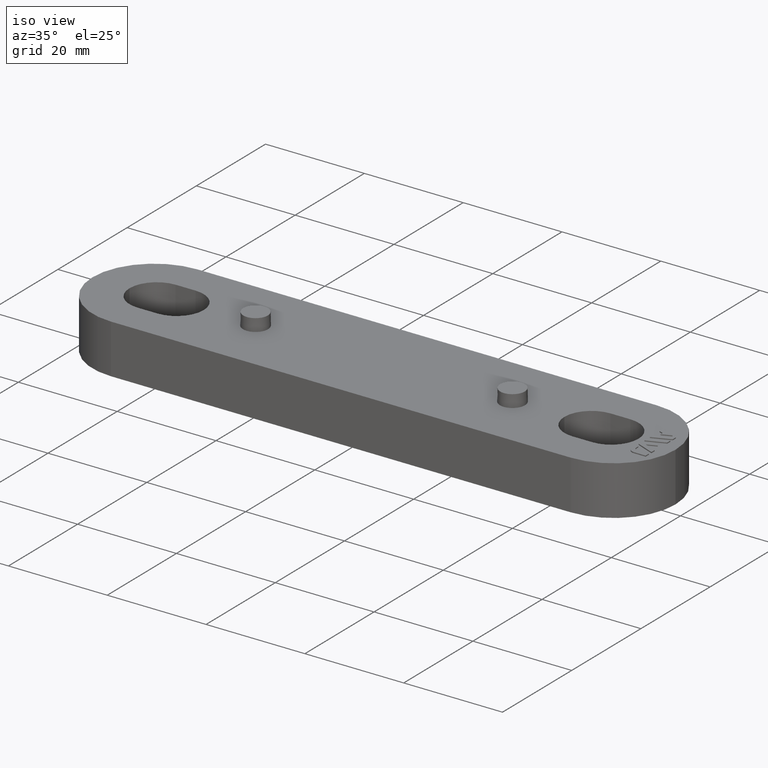
[diagram: clean part render]
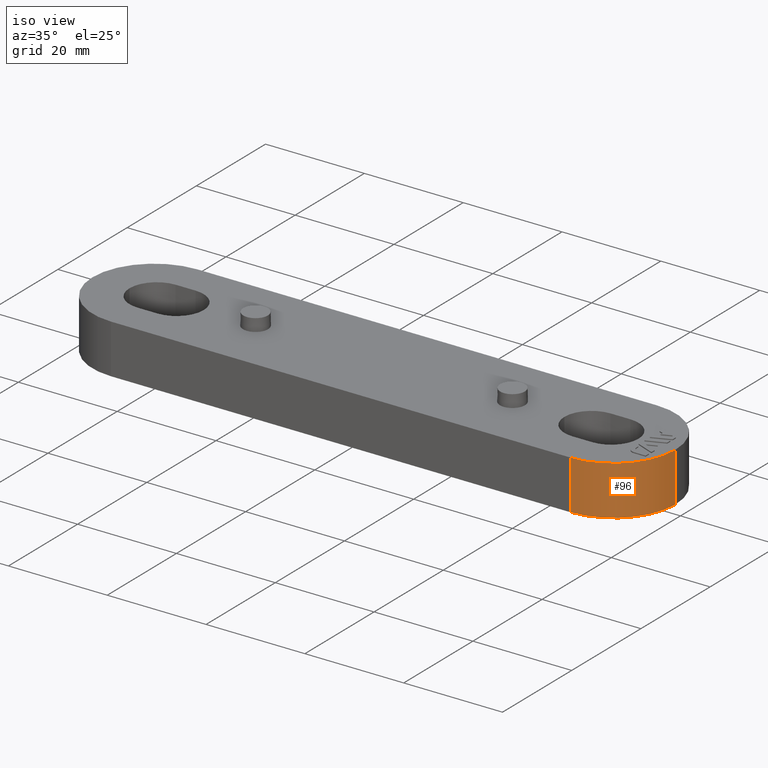
[diagram: same view with one face highlighted and labeled with its STEP entity id]
A machine part, iso view. The second image highlights one B-rep face of the part: STEP entity #96.
In plain terms, the highlighted cylindrical surface (partial cylindrical patch) has radius 12.5 mm, axis along (0, -0, -1).
Its self-contained STEP definition (entity closure, byte-faithful):
#96 = ADVANCED_FACE( '', ( #598 ), #599, .T. );
#598 = FACE_OUTER_BOUND( '', #1490, .T. );
#599 = CYLINDRICAL_SURFACE( '', #1491, 12.5000000000000 );
#1490 = EDGE_LOOP( '', ( #2770, #2771, #2772, #2773 ) );
#1491 = AXIS2_PLACEMENT_3D( '', #2774, #2775, #2776 );
#2770 = ORIENTED_EDGE( '', *, *, #5580, .T. );
#2771 = ORIENTED_EDGE( '', *, *, #5970, .F. );
#2772 = ORIENTED_EDGE( '', *, *, #5923, .F. );
#2773 = ORIENTED_EDGE( '', *, *, #5612, .T. );
#2774 = CARTESIAN_POINT( '', ( 46.5000000000000, 2.71962373006244E-031, 1.38777878078145E-014 ) );
#2775 = DIRECTION( '', ( 0.000000000000000, -6.12303176911189E-017, -1.00000000000000 ) );
#2776 = DIRECTION( '', ( -1.00000000000000, -6.12303176911189E-017, 3.74915180455534E-033 ) );
#5580 = EDGE_CURVE( '', #6619, #6627, #6629, .T. );
#5612 = EDGE_CURVE( '', #6692, #6619, #6693, .T. );
#5923 = EDGE_CURVE( '', #6692, #7307, #7308, .T. );
#5970 = EDGE_CURVE( '', #7307, #6627, #7396, .T. );
#6619 = VERTEX_POINT( '', #8354 );
#6627 = VERTEX_POINT( '', #8363 );
#6629 = CIRCLE( '', #8366, 12.5000000000000 );
#6692 = VERTEX_POINT( '', #8448 );
#6693 = LINE( '', #8449, #8450 );
#7307 = VERTEX_POINT( '', #9334 );
#7308 = CIRCLE( '', #9335, 12.5000000000000 );
#7396 = LINE( '', #9459, #9460 );
#8354 = CARTESIAN_POINT( '', ( 59.0000000000000, 2.14306111918916E-015, 10.0000000000000 ) );
#8363 = CARTESIAN_POINT( '', ( 46.5000000000000, -12.5000000000000, 10.0000000000000 ) );
#8366 = AXIS2_PLACEMENT_3D( '', #11018, #11019, #11020 );
#8448 = CARTESIAN_POINT( '', ( 59.0000000000000, 1.53075794227797E-015, 1.38777878078145E-014 ) );
#8449 = CARTESIAN_POINT( '', ( 59.0000000000000, 1.53075794227797E-015, 1.38777878078145E-014 ) );
#8450 = VECTOR( '', #11076, 1000.00000000000 );
#9334 = CARTESIAN_POINT( '', ( 46.5000000000000, -12.5000000000000, 1.46431667789534E-014 ) );
#9335 = AXIS2_PLACEMENT_3D( '', #11467, #11468, #11469 );
#9459 = CARTESIAN_POINT( '', ( 46.5000000000000, -12.5000000000000, 1.46431667789534E-014 ) );
#9460 = VECTOR( '', #11536, 1000.00000000000 );
#11018 = CARTESIAN_POINT( '', ( 46.5000000000000, 6.12303176911189E-016, 10.0000000000000 ) );
#11019 = DIRECTION( '', ( 0.000000000000000, -6.12303176911189E-017, -1.00000000000000 ) );
#11020 = DIRECTION( '', ( -6.12303176911189E-017, 1.00000000000000, -6.12303176911189E-017 ) );
#11076 = DIRECTION( '', ( 0.000000000000000, 6.12303176911189E-017, 1.00000000000000 ) );
#11467 = CARTESIAN_POINT( '', ( 46.5000000000000, 2.71962373006244E-031, 1.38777878078145E-014 ) );
#11468 = DIRECTION( '', ( 0.000000000000000, -6.12303176911189E-017, -1.00000000000000 ) );
#11469 = DIRECTION( '', ( -6.12303176911189E-017, 1.00000000000000, -6.12303176911189E-017 ) );
#11536 = DIRECTION( '', ( 0.000000000000000, 6.12303176911189E-017, 1.00000000000000 ) );